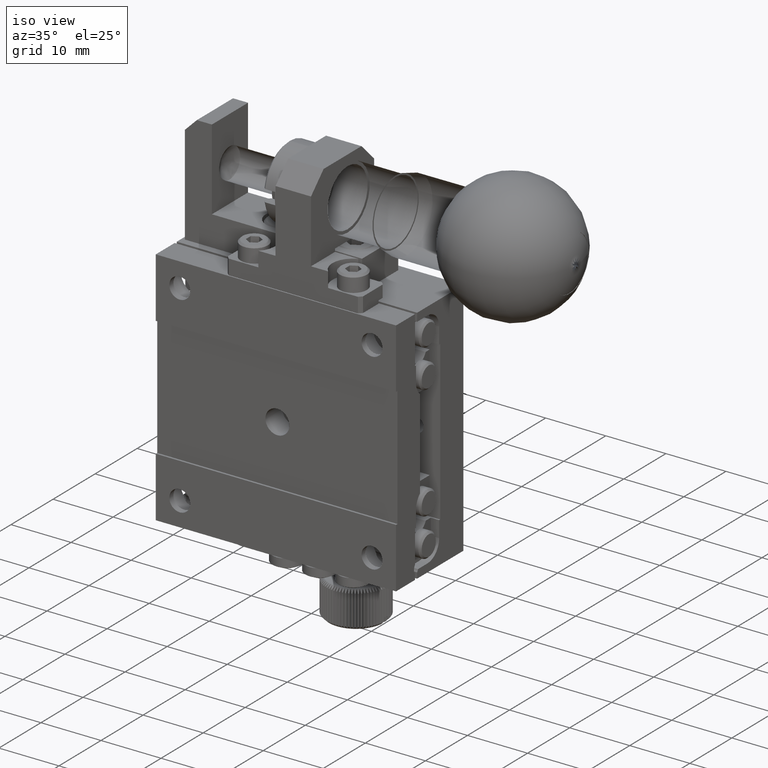
[diagram: clean part render]
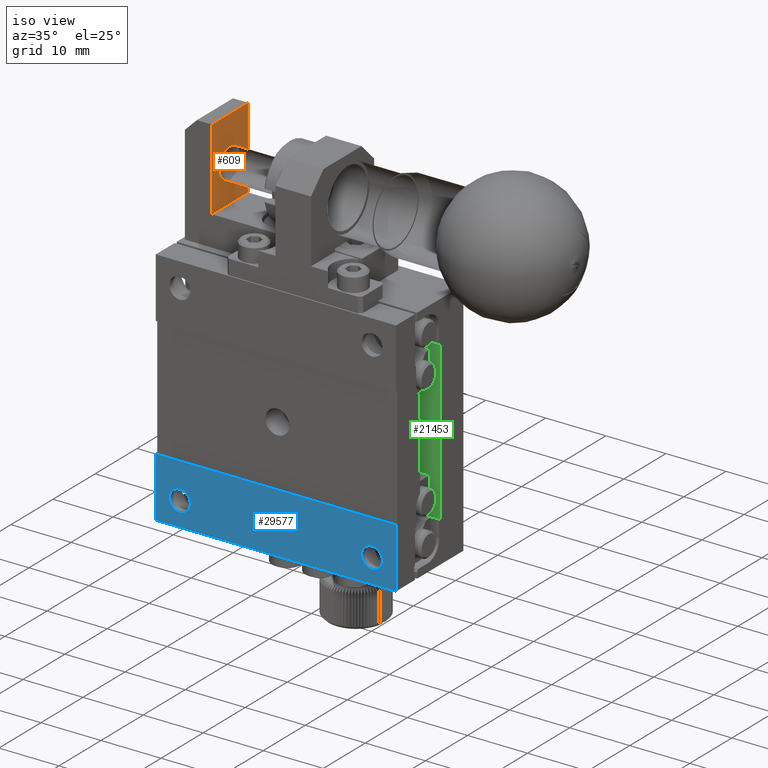
[diagram: same view with three faces highlighted in distinct colors, each labeled with its STEP entity id]
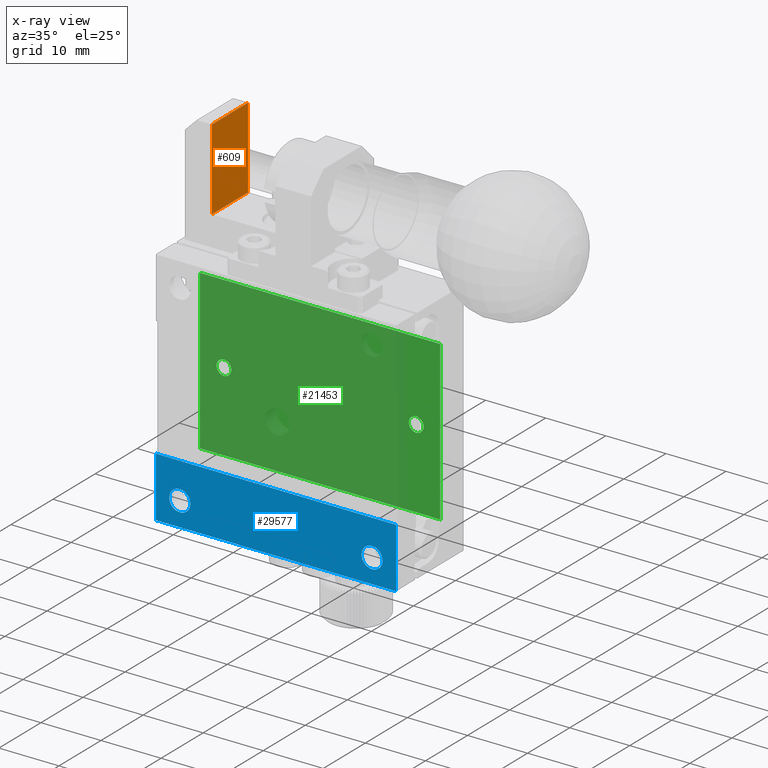
[diagram: x-ray of the same camera — body ghosted, the three highlighted faces saturated]
A machine part, iso view with three faces highlighted in distinct colors.
The next image is the same camera in x-ray (body ghosted, the three faces saturated) — at least one of them is partly hidden behind the body in this view.
Their STEP definitions:

[orange] entity #609 — the highlighted planar face has unit normal (1, -0, 0).
#609 = ADVANCED_FACE ( 'NONE', ( #65823 ), #51210, .T. ) ;
#3960 = ORIENTED_EDGE ( 'NONE', *, *, #72071, .F. ) ;
#6375 = EDGE_CURVE ( 'NONE', #81745, #54856, #18937, .T. ) ;
#6975 = ORIENTED_EDGE ( 'NONE', *, *, #6375, .T. ) ;
#8745 = EDGE_LOOP ( 'NONE', ( #59648, #89924, #3960, #6975 ) ) ;
#9193 = CARTESIAN_POINT ( 'NONE',  ( 6.109590059148118257, 6.200000000000001954, 25.00000000000000000 ) ) ;
#9659 = LINE ( 'NONE', #9193, #53969 ) ;
#12965 = CARTESIAN_POINT ( 'NONE',  ( 6.109590059148118257, 6.200000000000001954, 38.50000000000000000 ) ) ;
#14305 = CARTESIAN_POINT ( 'NONE',  ( 6.109590059148118257, 6.200000000000001954, 38.50000000000000000 ) ) ;
#17771 = VERTEX_POINT ( 'NONE', #30651 ) ;
#18937 = LINE ( 'NONE', #48553, #38149 ) ;
#25640 = VECTOR ( 'NONE', #46220, 1000.000000000000000 ) ;
#30651 = CARTESIAN_POINT ( 'NONE',  ( 6.109590059148118257, 14.80000000000000071, 25.00000000000000000 ) ) ;
#30794 = DIRECTION ( 'NONE',  ( 1.000000000000000000, -0.000000000000000000, 0.000000000000000000 ) ) ;
#31834 = LINE ( 'NONE', #60550, #95733 ) ;
#33440 = DIRECTION ( 'NONE',  ( 0.000000000000000000, -1.000000000000000000, -0.000000000000000000 ) ) ;
#35477 = CARTESIAN_POINT ( 'NONE',  ( 6.109590059148118257, 14.80000000000000071, 38.50000000000000000 ) ) ;
#38149 = VECTOR ( 'NONE', #70950, 1000.000000000000000 ) ;
#46220 = DIRECTION ( 'NONE',  ( -0.000000000000000000, 0.000000000000000000, -1.000000000000000000 ) ) ;
#46685 = LINE ( 'NONE', #76360, #25640 ) ;
#48553 = CARTESIAN_POINT ( 'NONE',  ( 6.109590059148118257, 6.200000000000001954, 38.50000000000000000 ) ) ;
#50416 = EDGE_CURVE ( 'NONE', #17771, #56777, #9659, .T. ) ;
#51210 = PLANE ( 'NONE',  #61850 ) ;
#53969 = VECTOR ( 'NONE', #33440, 1000.000000000000000 ) ;
#54856 = VERTEX_POINT ( 'NONE', #12965 ) ;
#56777 = VERTEX_POINT ( 'NONE', #67323 ) ;
#59648 = ORIENTED_EDGE ( 'NONE', *, *, #88123, .T. ) ;
#60437 = DIRECTION ( 'NONE',  ( 0.000000000000000000, 0.000000000000000000, -1.000000000000000000 ) ) ;
#60550 = CARTESIAN_POINT ( 'NONE',  ( 6.109590059148118257, 14.80000000000000071, 0.000000000000000000 ) ) ;
#61850 = AXIS2_PLACEMENT_3D ( 'NONE', #14305, #30794, #60437 ) ;
#65823 = FACE_OUTER_BOUND ( 'NONE', #8745, .T. ) ;
#67323 = CARTESIAN_POINT ( 'NONE',  ( 6.109590059148118257, 6.200000000000001954, 25.00000000000000000 ) ) ;
#70950 = DIRECTION ( 'NONE',  ( -0.000000000000000000, -1.000000000000000000, -0.000000000000000000 ) ) ;
#72071 = EDGE_CURVE ( 'NONE', #81745, #17771, #31834, .T. ) ;
#76360 = CARTESIAN_POINT ( 'NONE',  ( 6.109590059148118257, 6.200000000000001954, 0.000000000000000000 ) ) ;
#81745 = VERTEX_POINT ( 'NONE', #35477 ) ;
#83802 = DIRECTION ( 'NONE',  ( -0.000000000000000000, 0.000000000000000000, -1.000000000000000000 ) ) ;
#88123 = EDGE_CURVE ( 'NONE', #54856, #56777, #46685, .T. ) ;
#89924 = ORIENTED_EDGE ( 'NONE', *, *, #50416, .F. ) ;
#95733 = VECTOR ( 'NONE', #83802, 1000.000000000000000 ) ;

[blue] entity #29577 — the highlighted planar face has unit normal (-0, 1, 0).
#5407 = AXIS2_PLACEMENT_3D ( 'NONE', #43512, #79498, #14399 ) ;
#5936 = CARTESIAN_POINT ( 'NONE',  ( 1.109590059148117591, 0.000000000000000000, -18.39999999999999858 ) ) ;
#6124 = CARTESIAN_POINT ( 'NONE',  ( 41.10959005914811826, 0.000000000000000000, -20.00000000000000000 ) ) ;
#6295 = CARTESIAN_POINT ( 'NONE',  ( 41.10959005914811826, 0.000000000000000000, -9.999999999999998224 ) ) ;
#7081 = PLANE ( 'NONE',  #5407 ) ;
#7577 = FACE_BOUND ( 'NONE', #86678, .T. ) ;
#10260 = CARTESIAN_POINT ( 'NONE',  ( 5.109590059148117369, 0.000000000000000000, -16.00000000000000000 ) ) ;
#11867 = ORIENTED_EDGE ( 'NONE', *, *, #41851, .T. ) ;
#13539 = AXIS2_PLACEMENT_3D ( 'NONE', #10260, #41681, #71379 ) ;
#14399 = DIRECTION ( 'NONE',  ( 0.000000000000000000, -0.000000000000000000, 1.000000000000000000 ) ) ;
#18035 = CIRCLE ( 'NONE', #72360, 1.750000000000001554 ) ;
#19460 = CARTESIAN_POINT ( 'NONE',  ( 41.10959005914811826, 0.000000000000000000, -18.39999999999999858 ) ) ;
#22368 = LINE ( 'NONE', #67559, #25872 ) ;
#23504 = VERTEX_POINT ( 'NONE', #25443 ) ;
#23682 = CARTESIAN_POINT ( 'NONE',  ( 37.10959005914811826, 0.000000000000000000, -16.00000000000000000 ) ) ;
#25443 = CARTESIAN_POINT ( 'NONE',  ( 37.10959005914811826, 0.000000000000000000, -17.75000000000000355 ) ) ;
#25872 = VECTOR ( 'NONE', #58348, 1000.000000000000000 ) ;
#26176 = CARTESIAN_POINT ( 'NONE',  ( 1.109590059148117591, 0.000000000000000000, -9.999999999999998224 ) ) ;
#26968 = VECTOR ( 'NONE', #35076, 1000.000000000000000 ) ;
#29577 = ADVANCED_FACE ( 'NONE', ( #73676, #7577, #95513 ), #7081, .F. ) ;
#32734 = CARTESIAN_POINT ( 'NONE',  ( 41.10959005914811826, 0.000000000000000000, -10.00000000000000000 ) ) ;
#35076 = DIRECTION ( 'NONE',  ( 0.000000000000000000, 0.000000000000000000, -1.000000000000000000 ) ) ;
#35174 = EDGE_CURVE ( 'NONE', #58477, #87059, #22368, .T. ) ;
#37660 = VERTEX_POINT ( 'NONE', #6295 ) ;
#37760 = DIRECTION ( 'NONE',  ( 0.000000000000000000, -1.000000000000000000, -0.000000000000000000 ) ) ;
#39185 = DIRECTION ( 'NONE',  ( 0.000000000000000000, 0.000000000000000000, -1.000000000000000000 ) ) ;
#40899 = LINE ( 'NONE', #5936, #26968 ) ;
#41681 = DIRECTION ( 'NONE',  ( 0.000000000000000000, -1.000000000000000000, -0.000000000000000000 ) ) ;
#41851 = EDGE_CURVE ( 'NONE', #50546, #58477, #40899, .T. ) ;
#42995 = EDGE_LOOP ( 'NONE', ( #89294, #82139, #11867, #72829 ) ) ;
#43512 = CARTESIAN_POINT ( 'NONE',  ( 41.10959005914811826, 0.000000000000000000, 20.00000000000000000 ) ) ;
#45344 = VERTEX_POINT ( 'NONE', #53154 ) ;
#50546 = VERTEX_POINT ( 'NONE', #26176 ) ;
#53154 = CARTESIAN_POINT ( 'NONE',  ( 5.109590059148117369, 0.000000000000000000, -17.75000000000000355 ) ) ;
#58348 = DIRECTION ( 'NONE',  ( 1.000000000000000000, 0.000000000000000000, -0.000000000000000000 ) ) ;
#58477 = VERTEX_POINT ( 'NONE', #70050 ) ;
#60857 = EDGE_CURVE ( 'NONE', #23504, #23504, #18035, .T. ) ;
#61928 = DIRECTION ( 'NONE',  ( 1.000000000000000000, 0.000000000000000000, -0.000000000000000000 ) ) ;
#62393 = LINE ( 'NONE', #32734, #81266 ) ;
#63404 = EDGE_CURVE ( 'NONE', #45344, #45344, #89513, .T. ) ;
#64222 = VECTOR ( 'NONE', #87916, 1000.000000000000000 ) ;
#66000 = ORIENTED_EDGE ( 'NONE', *, *, #60857, .F. ) ;
#67559 = CARTESIAN_POINT ( 'NONE',  ( 41.10959005914811826, 0.000000000000000000, -20.00000000000000000 ) ) ;
#69997 = ORIENTED_EDGE ( 'NONE', *, *, #63404, .F. ) ;
#70050 = CARTESIAN_POINT ( 'NONE',  ( 1.109590059148117591, 0.000000000000000000, -20.00000000000000000 ) ) ;
#71379 = DIRECTION ( 'NONE',  ( 0.000000000000000000, 0.000000000000000000, -1.000000000000000000 ) ) ;
#72360 = AXIS2_PLACEMENT_3D ( 'NONE', #23682, #37760, #39185 ) ;
#72829 = ORIENTED_EDGE ( 'NONE', *, *, #35174, .T. ) ;
#73676 = FACE_OUTER_BOUND ( 'NONE', #42995, .T. ) ;
#79498 = DIRECTION ( 'NONE',  ( -0.000000000000000000, 1.000000000000000000, 0.000000000000000000 ) ) ;
#81266 = VECTOR ( 'NONE', #61928, 1000.000000000000000 ) ;
#81748 = EDGE_CURVE ( 'NONE', #37660, #87059, #86936, .T. ) ;
#82139 = ORIENTED_EDGE ( 'NONE', *, *, #82409, .F. ) ;
#82409 = EDGE_CURVE ( 'NONE', #50546, #37660, #62393, .T. ) ;
#86678 = EDGE_LOOP ( 'NONE', ( #69997 ) ) ;
#86936 = LINE ( 'NONE', #19460, #64222 ) ;
#87059 = VERTEX_POINT ( 'NONE', #6124 ) ;
#87916 = DIRECTION ( 'NONE',  ( 0.000000000000000000, 0.000000000000000000, -1.000000000000000000 ) ) ;
#89294 = ORIENTED_EDGE ( 'NONE', *, *, #81748, .F. ) ;
#89513 = CIRCLE ( 'NONE', #13539, 1.750000000000001554 ) ;
#91419 = EDGE_LOOP ( 'NONE', ( #66000 ) ) ;
#95513 = FACE_BOUND ( 'NONE', #91419, .T. ) ;

[green] entity #21453 — the highlighted planar face has unit normal (-0, 1, 0).
#194 = ORIENTED_EDGE ( 'NONE', *, *, #33672, .T. ) ;
#216 = LINE ( 'NONE', #48515, #25746 ) ;
#1363 = DIRECTION ( 'NONE',  ( -0.000000000000000000, 1.000000000000000000, 0.000000000000000000 ) ) ;
#2722 = EDGE_CURVE ( 'NONE', #62086, #75555, #21275, .T. ) ;
#8874 = ORIENTED_EDGE ( 'NONE', *, *, #17212, .F. ) ;
#9150 = FACE_OUTER_BOUND ( 'NONE', #10795, .T. ) ;
#9570 = AXIS2_PLACEMENT_3D ( 'NONE', #24688, #1363, #62581 ) ;
#10795 = EDGE_LOOP ( 'NONE', ( #82909, #194, #28192, #19506 ) ) ;
#11606 = DIRECTION ( 'NONE',  ( 0.000000000000000000, 0.000000000000000000, -1.000000000000000000 ) ) ;
#14351 = DIRECTION ( 'NONE',  ( 1.000000000000000000, 0.000000000000000000, 0.000000000000000000 ) ) ;
#16467 = PLANE ( 'NONE',  #9570 ) ;
#17212 = EDGE_CURVE ( 'NONE', #93043, #93043, #22920, .T. ) ;
#17811 = VECTOR ( 'NONE', #89715, 1000.000000000000000 ) ;
#18627 = CARTESIAN_POINT ( 'NONE',  ( 5.109590059148117369, 10.50000000000000000, 1.229500000000000259 ) ) ;
#19506 = ORIENTED_EDGE ( 'NONE', *, *, #59171, .F. ) ;
#21275 = LINE ( 'NONE', #80999, #17811 ) ;
#21453 = ADVANCED_FACE ( 'NONE', ( #9150, #82969, #38763 ), #16467, .F. ) ;
#22920 = CIRCLE ( 'NONE', #39929, 1.229500000000000037 ) ;
#24688 = CARTESIAN_POINT ( 'NONE',  ( 41.10959005914811826, 10.50000000000000000, 13.19999999999999929 ) ) ;
#25746 = VECTOR ( 'NONE', #11606, 1000.000000000000000 ) ;
#28192 = ORIENTED_EDGE ( 'NONE', *, *, #2722, .F. ) ;
#28531 = DIRECTION ( 'NONE',  ( 0.000000000000000000, -1.000000000000000000, 3.309232450487230262E-17 ) ) ;
#29406 = CARTESIAN_POINT ( 'NONE',  ( 41.10959005914811826, 10.50000000000000000, 13.19999999999999751 ) ) ;
#32092 = ORIENTED_EDGE ( 'NONE', *, *, #84042, .F. ) ;
#33672 = EDGE_CURVE ( 'NONE', #63252, #75555, #216, .T. ) ;
#34830 = VERTEX_POINT ( 'NONE', #84310 ) ;
#38763 = FACE_BOUND ( 'NONE', #95852, .T. ) ;
#39929 = AXIS2_PLACEMENT_3D ( 'NONE', #44754, #59849, #58899 ) ;
#42380 = CARTESIAN_POINT ( 'NONE',  ( 41.10959005914811826, 10.50000000000000000, 15.90000000000000036 ) ) ;
#43359 = DIRECTION ( 'NONE',  ( 0.000000000000000000, 0.000000000000000000, -1.000000000000000000 ) ) ;
#44395 = CARTESIAN_POINT ( 'NONE',  ( 37.10959005914811826, 10.50000000000000000, 1.229500000000000259 ) ) ;
#44754 = CARTESIAN_POINT ( 'NONE',  ( 37.10959005914811826, 10.50000000000000000, 1.820077847767970851E-16 ) ) ;
#48515 = CARTESIAN_POINT ( 'NONE',  ( 1.109590059148117591, 10.50000000000000000, 15.90000000000000036 ) ) ;
#50541 = VECTOR ( 'NONE', #14351, 1000.000000000000000 ) ;
#50877 = CARTESIAN_POINT ( 'NONE',  ( 5.109590059148117369, 10.50000000000000000, 1.820077847767970851E-16 ) ) ;
#51260 = LINE ( 'NONE', #29406, #50541 ) ;
#51507 = VECTOR ( 'NONE', #43359, 1000.000000000000000 ) ;
#56963 = VERTEX_POINT ( 'NONE', #18627 ) ;
#58899 = DIRECTION ( 'NONE',  ( 0.000000000000000000, 0.000000000000000000, 1.000000000000000000 ) ) ;
#59171 = EDGE_CURVE ( 'NONE', #34830, #62086, #73047, .T. ) ;
#59644 = AXIS2_PLACEMENT_3D ( 'NONE', #50877, #28531, #65492 ) ;
#59849 = DIRECTION ( 'NONE',  ( 0.000000000000000000, -1.000000000000000000, 3.309232450487230262E-17 ) ) ;
#62086 = VERTEX_POINT ( 'NONE', #73994 ) ;
#62581 = DIRECTION ( 'NONE',  ( 0.000000000000000000, -0.000000000000000000, 1.000000000000000000 ) ) ;
#63252 = VERTEX_POINT ( 'NONE', #83137 ) ;
#65422 = EDGE_LOOP ( 'NONE', ( #8874 ) ) ;
#65492 = DIRECTION ( 'NONE',  ( 0.000000000000000000, 0.000000000000000000, 1.000000000000000000 ) ) ;
#73047 = LINE ( 'NONE', #42380, #51507 ) ;
#73994 = CARTESIAN_POINT ( 'NONE',  ( 41.10959005914811826, 10.50000000000000000, -13.19999999999999929 ) ) ;
#75555 = VERTEX_POINT ( 'NONE', #81164 ) ;
#78210 = CIRCLE ( 'NONE', #59644, 1.229500000000000037 ) ;
#80999 = CARTESIAN_POINT ( 'NONE',  ( 41.10959005914811826, 10.50000000000000000, -13.19999999999999929 ) ) ;
#81164 = CARTESIAN_POINT ( 'NONE',  ( 1.109590059148117591, 10.50000000000000000, -13.19999999999999751 ) ) ;
#82909 = ORIENTED_EDGE ( 'NONE', *, *, #89752, .F. ) ;
#82969 = FACE_BOUND ( 'NONE', #65422, .T. ) ;
#83137 = CARTESIAN_POINT ( 'NONE',  ( 1.109590059148117591, 10.50000000000000000, 13.19999999999999929 ) ) ;
#84042 = EDGE_CURVE ( 'NONE', #56963, #56963, #78210, .T. ) ;
#84310 = CARTESIAN_POINT ( 'NONE',  ( 41.10959005914811826, 10.50000000000000000, 13.19999999999999929 ) ) ;
#89715 = DIRECTION ( 'NONE',  ( -1.000000000000000000, -0.000000000000000000, -0.000000000000000000 ) ) ;
#89752 = EDGE_CURVE ( 'NONE', #63252, #34830, #51260, .T. ) ;
#93043 = VERTEX_POINT ( 'NONE', #44395 ) ;
#95852 = EDGE_LOOP ( 'NONE', ( #32092 ) ) ;